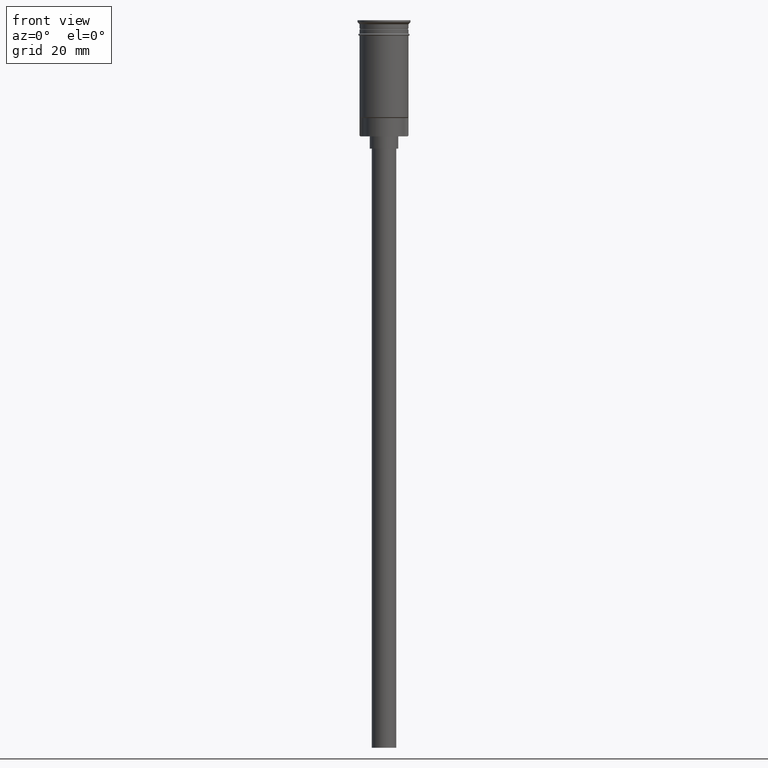
[diagram: clean part render]
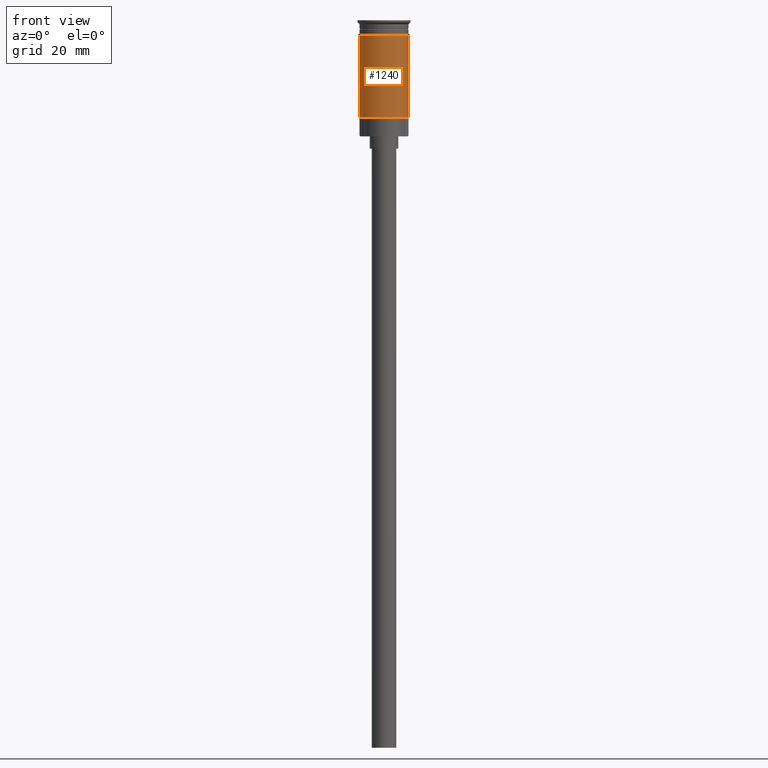
[diagram: same view with one face highlighted and labeled with its STEP entity id]
A machine part, front view. The second image highlights one B-rep face of the part: STEP entity #1240.
In plain terms, the highlighted cylindrical surface (edge-blend (fillet) strip) has radius 6 mm, axis along (-0, -0, 1).
Its self-contained STEP definition (entity closure, byte-faithful):
#55 = DIRECTION ( 'NONE',  ( -0.000000000000000000, -0.000000000000000000, 1.000000000000000000 ) ) ;
#58 = EDGE_CURVE ( 'NONE', #487, #841, #888, .T. ) ;
#101 = DIRECTION ( 'NONE',  ( -0.000000000000000000, -0.000000000000000000, 1.000000000000000000 ) ) ;
#167 = AXIS2_PLACEMENT_3D ( 'NONE', #172, #1384, #801 ) ;
#170 = CARTESIAN_POINT ( 'NONE',  ( 0.000000000000000000, 0.000000000000000000, -3.799999999999998490 ) ) ;
#172 = CARTESIAN_POINT ( 'NONE',  ( 0.000000000000000000, 0.000000000000000000, -23.79999999999997939 ) ) ;
#184 = EDGE_CURVE ( 'NONE', #1465, #773, #1182, .T. ) ;
#273 = CARTESIAN_POINT ( 'NONE',  ( -6.000000000000000000, 7.347880794884119736E-16, -3.799999999999998490 ) ) ;
#336 = AXIS2_PLACEMENT_3D ( 'NONE', #170, #1557, #1303 ) ;
#350 = CYLINDRICAL_SURFACE ( 'NONE', #1399, 5.999999999999997335 ) ;
#456 = ORIENTED_EDGE ( 'NONE', *, *, #184, .T. ) ;
#457 = FACE_OUTER_BOUND ( 'NONE', #828, .T. ) ;
#487 = VERTEX_POINT ( 'NONE', #643 ) ;
#543 = VECTOR ( 'NONE', #55, 1000.000000000000000 ) ;
#561 = CARTESIAN_POINT ( 'NONE',  ( 5.999999999999997335, 0.000000000000000000, 0.000000000000000000 ) ) ;
#617 = EDGE_CURVE ( 'NONE', #487, #1465, #864, .T. ) ;
#643 = CARTESIAN_POINT ( 'NONE',  ( -5.999999999999994671, 0.000000000000000000, -23.79999999999997939 ) ) ;
#689 = CARTESIAN_POINT ( 'NONE',  ( 5.999999999999997335, 7.347880794884115792E-16, -23.79999999999997939 ) ) ;
#773 = VERTEX_POINT ( 'NONE', #1494 ) ;
#801 = DIRECTION ( 'NONE',  ( -1.000000000000000000, 0.000000000000000000, 0.000000000000000000 ) ) ;
#828 = EDGE_LOOP ( 'NONE', ( #1366, #1110, #456, #1234 ) ) ;
#841 = VERTEX_POINT ( 'NONE', #273 ) ;
#864 = CIRCLE ( 'NONE', #167, 5.999999999999997335 ) ;
#873 = EDGE_CURVE ( 'NONE', #841, #773, #1091, .T. ) ;
#888 = LINE ( 'NONE', #1174, #543 ) ;
#1080 = CARTESIAN_POINT ( 'NONE',  ( 0.000000000000000000, 0.000000000000000000, 0.000000000000000000 ) ) ;
#1091 = CIRCLE ( 'NONE', #336, 6.000000000000000000 ) ;
#1098 = DIRECTION ( 'NONE',  ( 1.000000000000000000, 0.000000000000000000, 0.000000000000000000 ) ) ;
#1110 = ORIENTED_EDGE ( 'NONE', *, *, #617, .T. ) ;
#1174 = CARTESIAN_POINT ( 'NONE',  ( -5.999999999999997335, 7.347880794884116778E-16, 0.000000000000000000 ) ) ;
#1182 = LINE ( 'NONE', #561, #1510 ) ;
#1194 = DIRECTION ( 'NONE',  ( -0.000000000000000000, -0.000000000000000000, 1.000000000000000000 ) ) ;
#1234 = ORIENTED_EDGE ( 'NONE', *, *, #873, .F. ) ;
#1240 = ADVANCED_FACE ( 'NONE', ( #457 ), #350, .T. ) ;
#1303 = DIRECTION ( 'NONE',  ( 1.000000000000000000, 0.000000000000000000, 0.000000000000000000 ) ) ;
#1366 = ORIENTED_EDGE ( 'NONE', *, *, #58, .F. ) ;
#1384 = DIRECTION ( 'NONE',  ( -0.000000000000000000, -0.000000000000000000, 1.000000000000000000 ) ) ;
#1399 = AXIS2_PLACEMENT_3D ( 'NONE', #1080, #1194, #1098 ) ;
#1465 = VERTEX_POINT ( 'NONE', #689 ) ;
#1494 = CARTESIAN_POINT ( 'NONE',  ( 6.000000000000000000, 0.000000000000000000, -3.799999999999998490 ) ) ;
#1510 = VECTOR ( 'NONE', #101, 1000.000000000000000 ) ;
#1557 = DIRECTION ( 'NONE',  ( -0.000000000000000000, -0.000000000000000000, 1.000000000000000000 ) ) ;